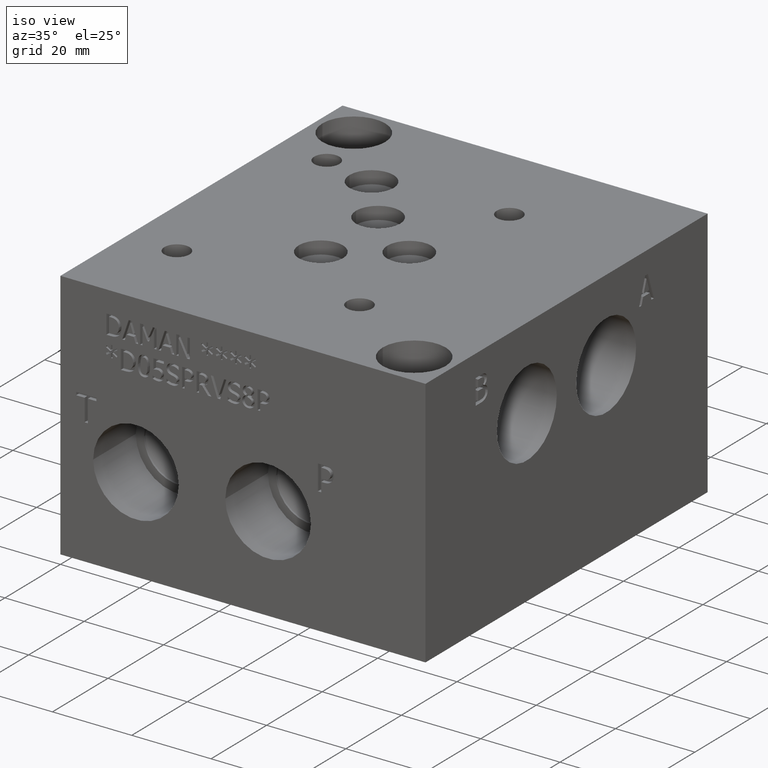
[diagram: clean part render]
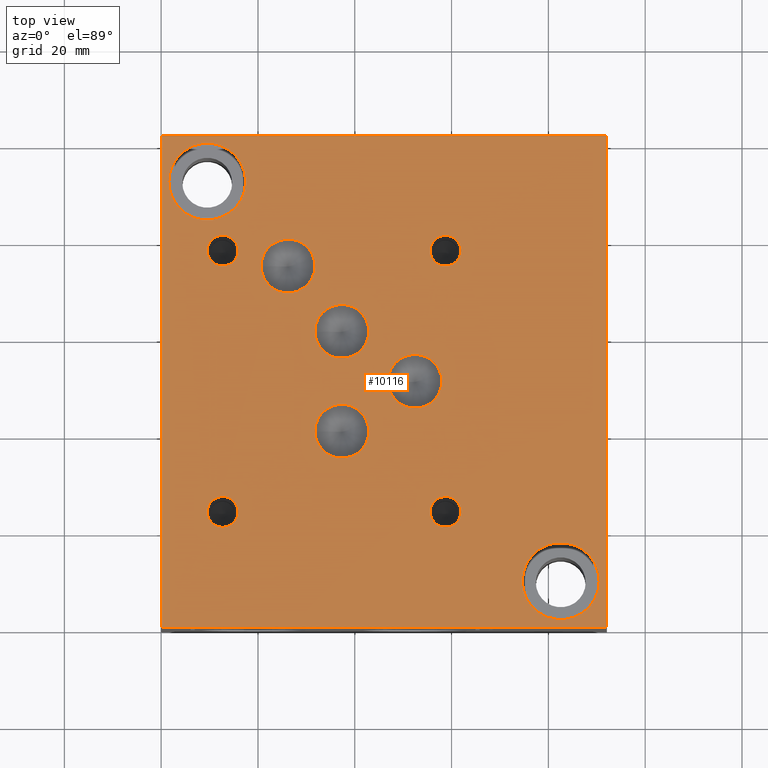
[diagram: tour spotlight — one face highlighted and labeled with its STEP entity id]
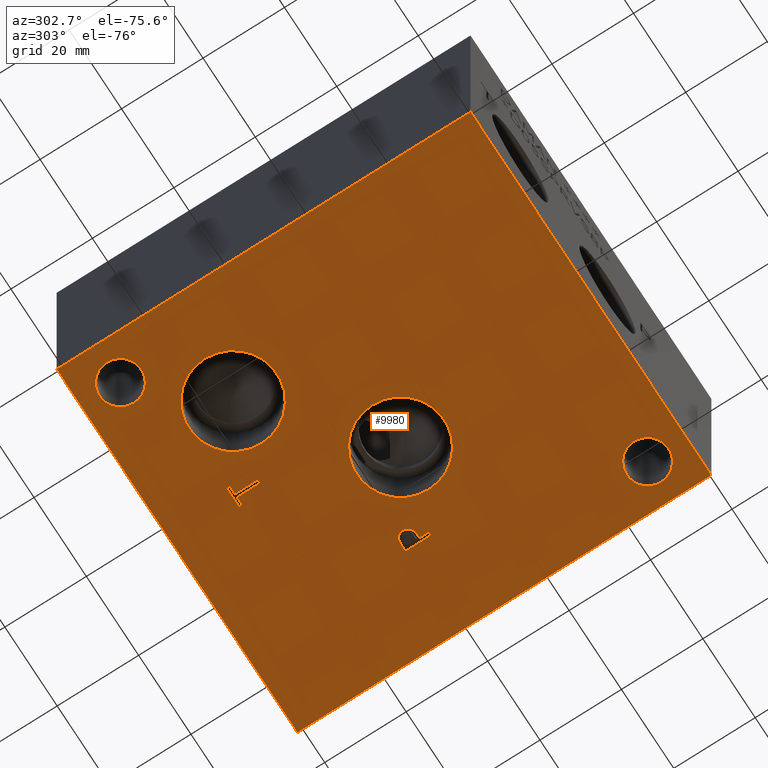
[diagram: tour spotlight — one face highlighted and labeled with its STEP entity id]
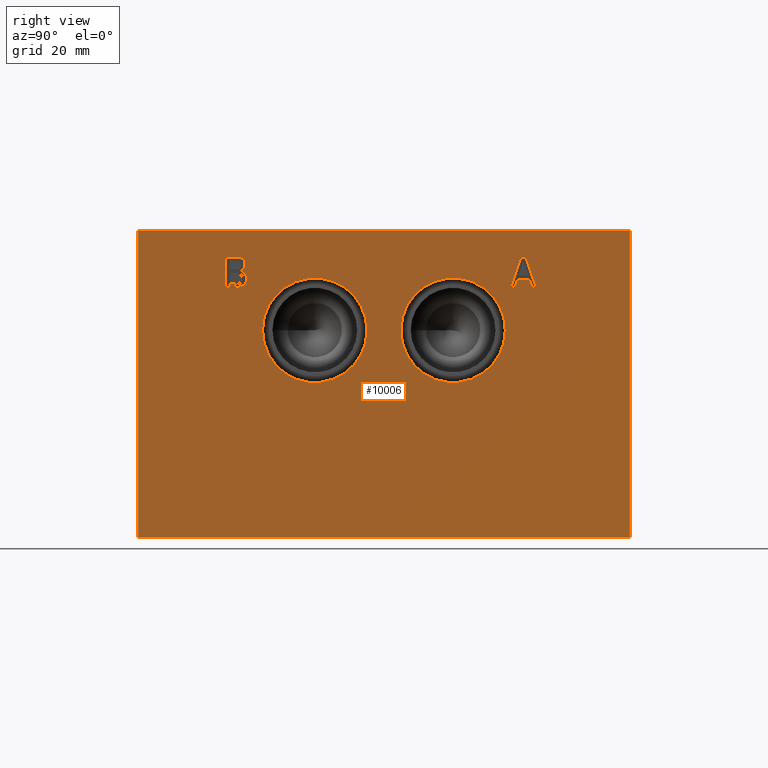
[diagram: tour spotlight — one face highlighted and labeled with its STEP entity id]
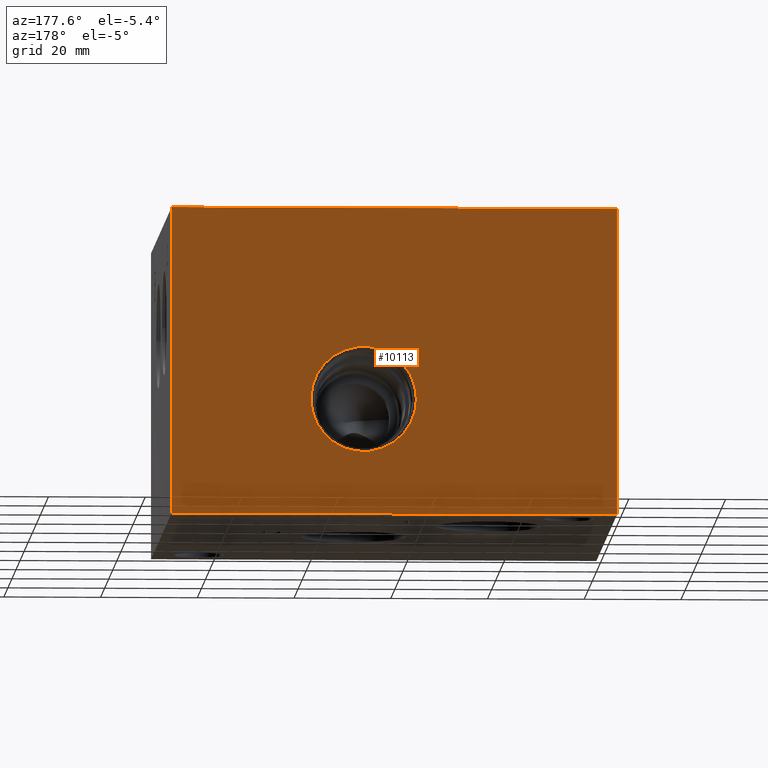
[diagram: tour spotlight — one face highlighted and labeled with its STEP entity id]
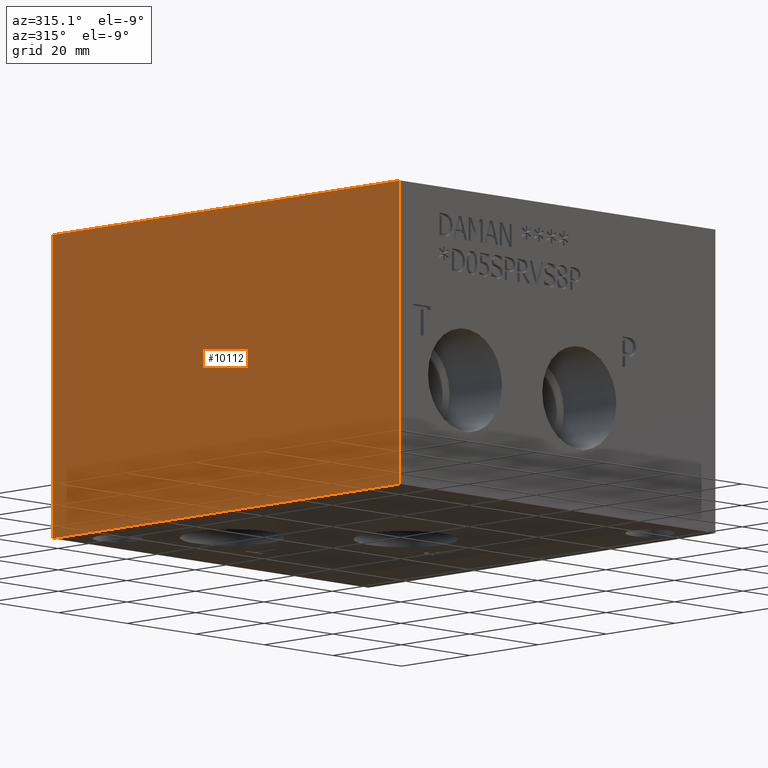
[diagram: tour spotlight — one face highlighted and labeled with its STEP entity id]
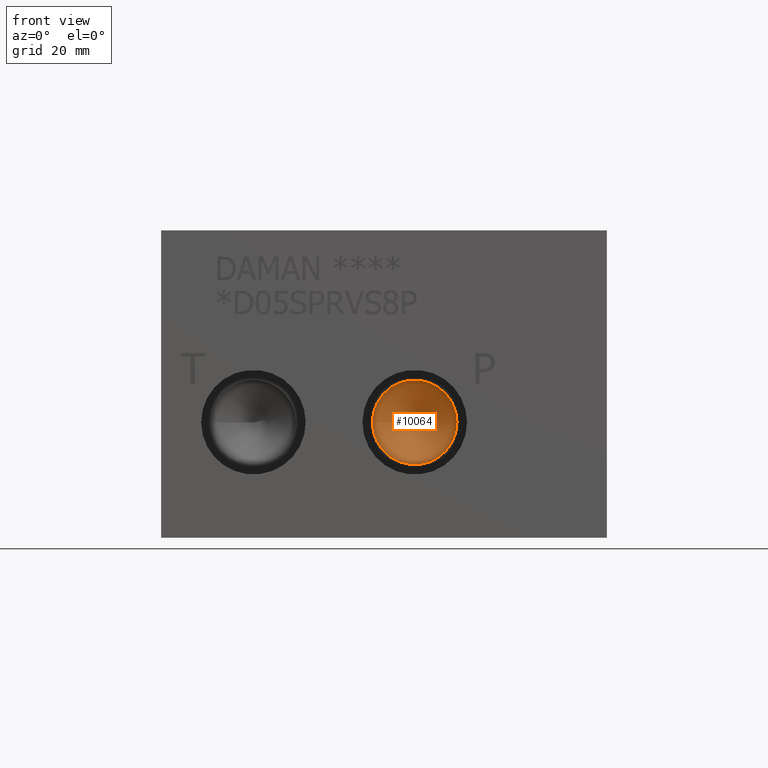
[diagram: tour spotlight — one face highlighted and labeled with its STEP entity id]
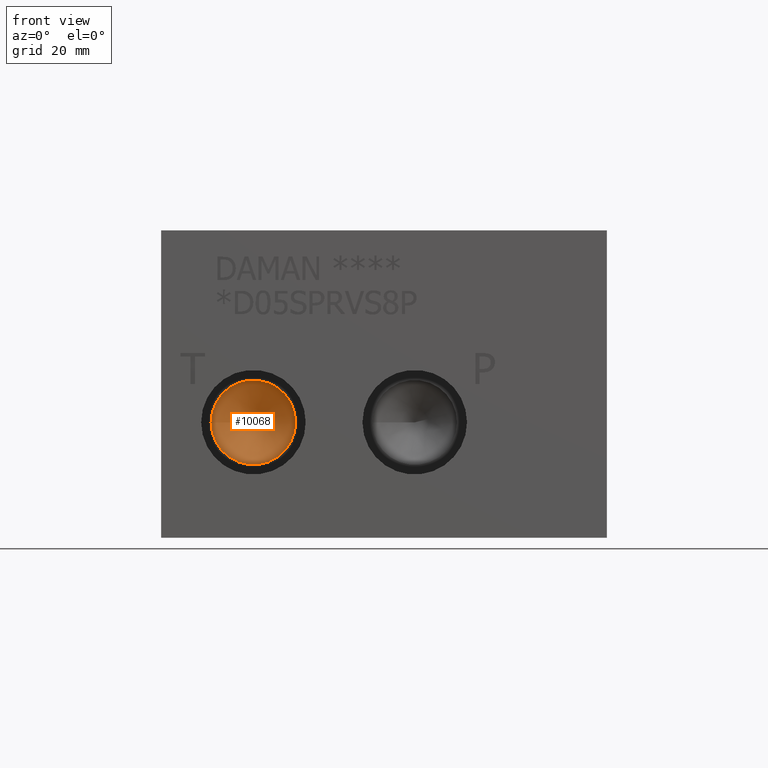
[diagram: tour spotlight — one face highlighted and labeled with its STEP entity id]
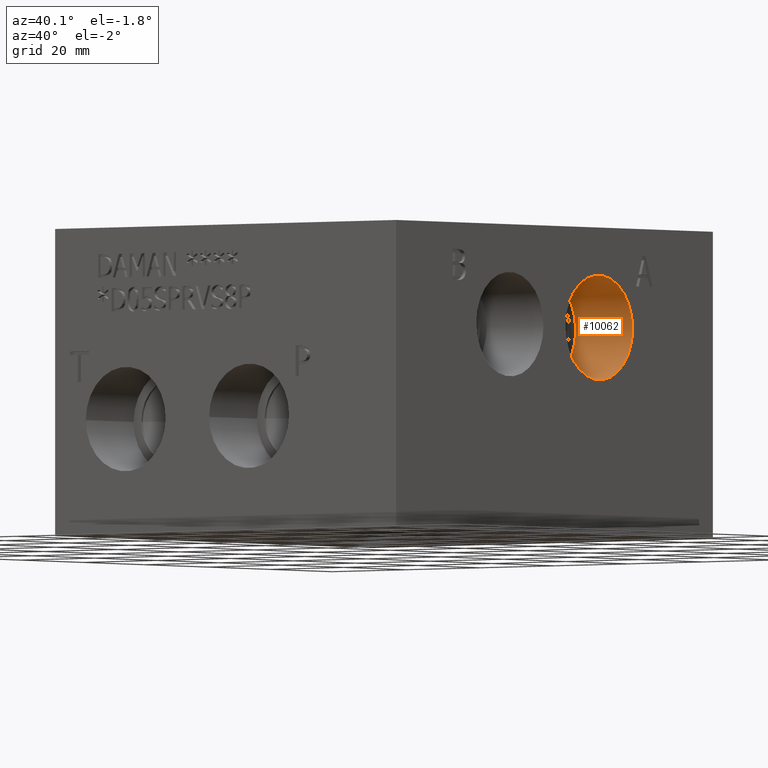
[diagram: tour spotlight — one face highlighted and labeled with its STEP entity id]
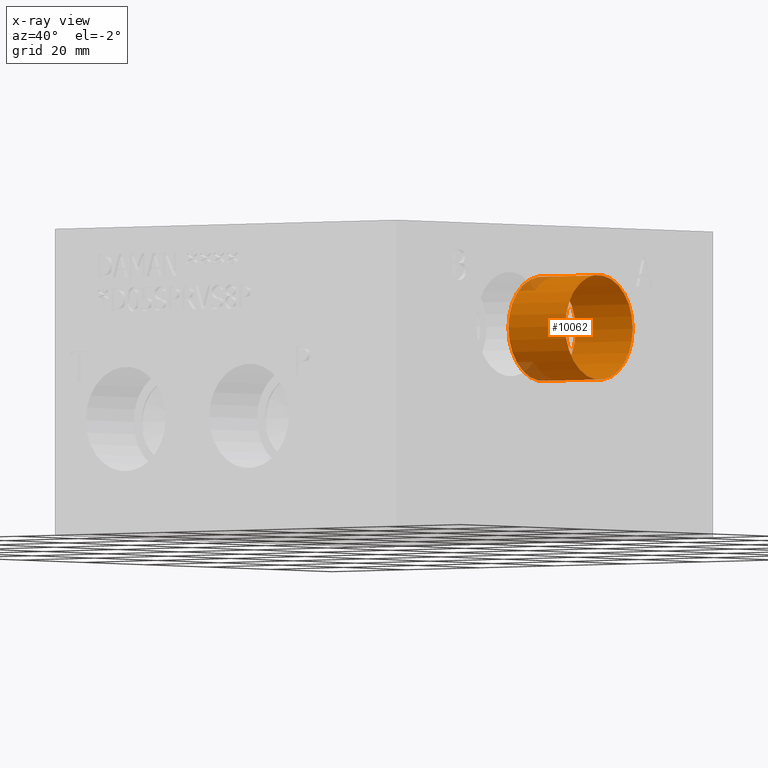
[diagram: x-ray of the same camera — body ghosted, this tour face saturated]
A machine part: a face-by-face anatomy tour. The part has 513 B-rep faces; the first image is the clean iso view, then the 8 largest visible faces are spotlighted one at a time (largest first), each with its STEP entity span.

Face 1 — top view, entity #10116. In plain terms, the highlighted planar face has unit normal (0, 0, 1).
Definition (entity closure, byte-faithful):
#683=FACE_BOUND('',#2096,.T.);
#684=FACE_BOUND('',#2097,.T.);
#685=FACE_BOUND('',#2098,.T.);
#686=FACE_BOUND('',#2099,.T.);
#687=FACE_BOUND('',#2100,.T.);
#688=FACE_BOUND('',#2101,.T.);
#689=FACE_BOUND('',#2102,.T.);
#690=FACE_BOUND('',#2103,.T.);
#691=FACE_BOUND('',#2104,.T.);
#692=FACE_BOUND('',#2105,.T.);
#1004=PLANE('',#10626);
#1517=FACE_OUTER_BOUND('',#2095,.T.);
#2095=EDGE_LOOP('',(#9555,#9556,#9557,#9558));
#2096=EDGE_LOOP('',(#9559,#9560));
#2097=EDGE_LOOP('',(#9561,#9562));
#2098=EDGE_LOOP('',(#9563,#9564));
#2099=EDGE_LOOP('',(#9565,#9566));
#2100=EDGE_LOOP('',(#9567,#9568));
#2101=EDGE_LOOP('',(#9569,#9570));
#2102=EDGE_LOOP('',(#9571,#9572));
#2103=EDGE_LOOP('',(#9573,#9574));
#2104=EDGE_LOOP('',(#9575,#9576));
#2105=EDGE_LOOP('',(#9577,#9578));
#2448=LINE('',#15187,#3416);
#2944=LINE('',#16745,#3912);
#3072=LINE('',#17364,#4040);
#3074=LINE('',#17367,#4042);
#3416=VECTOR('',#11183,10.);
#3912=VECTOR('',#12039,10.);
#4040=VECTOR('',#12577,10.);
#4042=VECTOR('',#12581,10.);
#4120=CIRCLE('',#10543,7.9375);
#4121=CIRCLE('',#10544,7.9375);
#4125=CIRCLE('',#10551,7.9375);
#4126=CIRCLE('',#10552,7.9375);
#4129=CIRCLE('',#10558,5.5626);
#4130=CIRCLE('',#10559,5.5626);
#4133=CIRCLE('',#10564,5.5626);
#4134=CIRCLE('',#10565,5.5626);
#4137=CIRCLE('',#10570,5.5626);
#4138=CIRCLE('',#10571,5.5626);
#4141=CIRCLE('',#10576,5.5626);
#4142=CIRCLE('',#10577,5.5626);
#4148=CIRCLE('',#10586,3.175);
#4149=CIRCLE('',#10587,3.175);
#4155=CIRCLE('',#10597,3.175);
#4156=CIRCLE('',#10598,3.175);
#4162=CIRCLE('',#10608,3.175);
#4163=CIRCLE('',#10609,3.175);
#4169=CIRCLE('',#10619,3.175);
#4170=CIRCLE('',#10620,3.175);
#4851=VERTEX_POINT('',#15184);
#4852=VERTEX_POINT('',#15186);
#5238=VERTEX_POINT('',#16743);
#5353=VERTEX_POINT('',#17200);
#5354=VERTEX_POINT('',#17201);
#5358=VERTEX_POINT('',#17215);
#5359=VERTEX_POINT('',#17216);
#5363=VERTEX_POINT('',#17230);
#5364=VERTEX_POINT('',#17231);
#5368=VERTEX_POINT('',#17243);
#5369=VERTEX_POINT('',#17244);
#5373=VERTEX_POINT('',#17256);
#5374=VERTEX_POINT('',#17257);
#5378=VERTEX_POINT('',#17269);
#5379=VERTEX_POINT('',#17270);
#5386=VERTEX_POINT('',#17289);
#5387=VERTEX_POINT('',#17290);
#5394=VERTEX_POINT('',#17311);
#5395=VERTEX_POINT('',#17312);
#5402=VERTEX_POINT('',#17333);
#5403=VERTEX_POINT('',#17334);
#5410=VERTEX_POINT('',#17355);
#5411=VERTEX_POINT('',#17356);
#5412=VERTEX_POINT('',#17363);
#5986=EDGE_CURVE('',#4852,#4851,#2448,.T.);
#6554=EDGE_CURVE('',#4851,#5238,#2944,.T.);
#6726=EDGE_CURVE('',#5353,#5354,#4120,.T.);
#6727=EDGE_CURVE('',#5354,#5353,#4121,.T.);
#6733=EDGE_CURVE('',#5358,#5359,#4125,.T.);
#6734=EDGE_CURVE('',#5359,#5358,#4126,.T.);
#6740=EDGE_CURVE('',#5363,#5364,#4129,.T.);
#6741=EDGE_CURVE('',#5364,#5363,#4130,.T.);
#6746=EDGE_CURVE('',#5368,#5369,#4133,.T.);
#6747=EDGE_CURVE('',#5369,#5368,#4134,.T.);
#6752=EDGE_CURVE('',#5373,#5374,#4137,.T.);
#6753=EDGE_CURVE('',#5374,#5373,#4138,.T.);
#6758=EDGE_CURVE('',#5378,#5379,#4141,.T.);
#6759=EDGE_CURVE('',#5379,#5378,#4142,.T.);
#6767=EDGE_CURVE('',#5386,#5387,#4148,.T.);
#6768=EDGE_CURVE('',#5387,#5386,#4149,.T.);
#6777=EDGE_CURVE('',#5394,#5395,#4155,.T.);
#6778=EDGE_CURVE('',#5395,#5394,#4156,.T.);
#6787=EDGE_CURVE('',#5402,#5403,#4162,.T.);
#6788=EDGE_CURVE('',#5403,#5402,#4163,.T.);
#6797=EDGE_CURVE('',#5410,#5411,#4169,.T.);
#6798=EDGE_CURVE('',#5411,#5410,#4170,.T.);
#6801=EDGE_CURVE('',#5412,#4852,#3072,.T.);
#6803=EDGE_CURVE('',#5238,#5412,#3074,.T.);
#9555=ORIENTED_EDGE('',*,*,#5986,.T.);
#9556=ORIENTED_EDGE('',*,*,#6554,.T.);
#9557=ORIENTED_EDGE('',*,*,#6803,.T.);
#9558=ORIENTED_EDGE('',*,*,#6801,.T.);
#9559=ORIENTED_EDGE('',*,*,#6726,.T.);
#9560=ORIENTED_EDGE('',*,*,#6727,.T.);
#9561=ORIENTED_EDGE('',*,*,#6733,.T.);
#9562=ORIENTED_EDGE('',*,*,#6734,.T.);
#9563=ORIENTED_EDGE('',*,*,#6740,.T.);
#9564=ORIENTED_EDGE('',*,*,#6741,.T.);
#9565=ORIENTED_EDGE('',*,*,#6746,.T.);
#9566=ORIENTED_EDGE('',*,*,#6747,.T.);
#9567=ORIENTED_EDGE('',*,*,#6752,.T.);
#9568=ORIENTED_EDGE('',*,*,#6753,.T.);
#9569=ORIENTED_EDGE('',*,*,#6758,.T.);
#9570=ORIENTED_EDGE('',*,*,#6759,.T.);
#9571=ORIENTED_EDGE('',*,*,#6767,.T.);
#9572=ORIENTED_EDGE('',*,*,#6768,.T.);
#9573=ORIENTED_EDGE('',*,*,#6777,.T.);
#9574=ORIENTED_EDGE('',*,*,#6778,.T.);
#9575=ORIENTED_EDGE('',*,*,#6787,.T.);
#9576=ORIENTED_EDGE('',*,*,#6788,.T.);
#9577=ORIENTED_EDGE('',*,*,#6797,.T.);
#9578=ORIENTED_EDGE('',*,*,#6798,.T.);
#10116=ADVANCED_FACE('',(#1517,#683,#684,#685,#686,#687,#688,#689,#690,
#691,#692),#1004,.T.);
#10543=AXIS2_PLACEMENT_3D('',#17202,#12393,#12394);
#10544=AXIS2_PLACEMENT_3D('',#17203,#12395,#12396);
#10551=AXIS2_PLACEMENT_3D('',#17217,#12411,#12412);
#10552=AXIS2_PLACEMENT_3D('',#17218,#12413,#12414);
#10558=AXIS2_PLACEMENT_3D('',#17232,#12428,#12429);
#10559=AXIS2_PLACEMENT_3D('',#17233,#12430,#12431);
#10564=AXIS2_PLACEMENT_3D('',#17245,#12442,#12443);
#10565=AXIS2_PLACEMENT_3D('',#17246,#12444,#12445);
#10570=AXIS2_PLACEMENT_3D('',#17258,#12456,#12457);
#10571=AXIS2_PLACEMENT_3D('',#17259,#12458,#12459);
#10576=AXIS2_PLACEMENT_3D('',#17271,#12470,#12471);
#10577=AXIS2_PLACEMENT_3D('',#17272,#12472,#12473);
#10586=AXIS2_PLACEMENT_3D('',#17291,#12492,#12493);
#10587=AXIS2_PLACEMENT_3D('',#17292,#12494,#12495);
#10597=AXIS2_PLACEMENT_3D('',#17313,#12517,#12518);
#10598=AXIS2_PLACEMENT_3D('',#17314,#12519,#12520);
#10608=AXIS2_PLACEMENT_3D('',#17335,#12542,#12543);
#10609=AXIS2_PLACEMENT_3D('',#17336,#12544,#12545);
#10619=AXIS2_PLACEMENT_3D('',#17357,#12567,#12568);
#10620=AXIS2_PLACEMENT_3D('',#17358,#12569,#12570);
#10626=AXIS2_PLACEMENT_3D('',#17370,#12586,#12587);
#11183=DIRECTION('',(1.,0.,0.));
#12039=DIRECTION('',(0.,1.,0.));
#12393=DIRECTION('center_axis',(0.,0.,-1.));
#12394=DIRECTION('ref_axis',(1.,0.,0.));
#12395=DIRECTION('center_axis',(0.,0.,-1.));
#12396=DIRECTION('ref_axis',(1.,0.,0.));
#12411=DIRECTION('center_axis',(0.,0.,-1.));
#12412=DIRECTION('ref_axis',(1.,0.,0.));
#12413=DIRECTION('center_axis',(0.,0.,-1.));
#12414=DIRECTION('ref_axis',(1.,0.,0.));
#12428=DIRECTION('center_axis',(0.,0.,-1.));
#12429=DIRECTION('ref_axis',(1.,0.,0.));
#12430=DIRECTION('center_axis',(0.,0.,-1.));
#12431=DIRECTION('ref_axis',(1.,0.,0.));
#12442=DIRECTION('center_axis',(0.,0.,-1.));
#12443=DIRECTION('ref_axis',(1.,0.,0.));
#12444=DIRECTION('center_axis',(0.,0.,-1.));
#12445=DIRECTION('ref_axis',(1.,0.,0.));
#12456=DIRECTION('center_axis',(0.,0.,-1.));
#12457=DIRECTION('ref_axis',(1.,0.,0.));
#12458=DIRECTION('center_axis',(0.,0.,-1.));
#12459=DIRECTION('ref_axis',(1.,0.,0.));
#12470=DIRECTION('center_axis',(0.,0.,-1.));
#12471=DIRECTION('ref_axis',(1.,0.,0.));
#12472=DIRECTION('center_axis',(0.,0.,-1.));
#12473=DIRECTION('ref_axis',(1.,0.,0.));
#12492=DIRECTION('center_axis',(0.,0.,-1.));
#12493=DIRECTION('ref_axis',(1.,0.,0.));
#12494=DIRECTION('center_axis',(0.,0.,-1.));
#12495=DIRECTION('ref_axis',(1.,0.,0.));
#12517=DIRECTION('center_axis',(0.,0.,-1.));
#12518=DIRECTION('ref_axis',(1.,0.,0.));
#12519=DIRECTION('center_axis',(0.,0.,-1.));
#12520=DIRECTION('ref_axis',(1.,0.,0.));
#12542=DIRECTION('center_axis',(0.,0.,-1.));
#12543=DIRECTION('ref_axis',(1.,0.,0.));
#12544=DIRECTION('center_axis',(0.,0.,-1.));
#12545=DIRECTION('ref_axis',(1.,0.,0.));
#12567=DIRECTION('center_axis',(0.,0.,-1.));
#12568=DIRECTION('ref_axis',(1.,0.,0.));
#12569=DIRECTION('center_axis',(0.,0.,-1.));
#12570=DIRECTION('ref_axis',(1.,0.,0.));
#12577=DIRECTION('',(0.,-1.,0.));
#12581=DIRECTION('',(-1.,0.,0.));
#12586=DIRECTION('center_axis',(0.,0.,1.));
#12587=DIRECTION('ref_axis',(1.,0.,0.));
#15184=CARTESIAN_POINT('',(92.075,0.,63.5));
#15186=CARTESIAN_POINT('',(0.,0.,63.5));
#15187=CARTESIAN_POINT('',(0.,0.,63.5));
#16743=CARTESIAN_POINT('',(92.075,101.6,63.5));
#16745=CARTESIAN_POINT('',(92.075,0.,63.5));
#17200=CARTESIAN_POINT('',(17.4625,92.075,63.5));
#17201=CARTESIAN_POINT('',(1.5875,92.075,63.5));
#17202=CARTESIAN_POINT('Origin',(9.525,92.075,63.5));
#17203=CARTESIAN_POINT('Origin',(9.525,92.075,63.5));
#17215=CARTESIAN_POINT('',(90.4875,9.525,63.5));
#17216=CARTESIAN_POINT('',(74.6125,9.525,63.5));
#17217=CARTESIAN_POINT('Origin',(82.55,9.525,63.5));
#17218=CARTESIAN_POINT('Origin',(82.55,9.525,63.5));
#17230=CARTESIAN_POINT('',(42.8879,61.11748,63.5));
#17231=CARTESIAN_POINT('',(31.7627,61.11748,63.5));
#17232=CARTESIAN_POINT('Origin',(37.3253,61.11748,63.5));
#17233=CARTESIAN_POINT('Origin',(37.3253,61.11748,63.5));
#17243=CARTESIAN_POINT('',(57.9882,50.8,63.5));
#17244=CARTESIAN_POINT('',(46.863,50.8,63.5));
#17245=CARTESIAN_POINT('Origin',(52.4256,50.8,63.5));
#17246=CARTESIAN_POINT('Origin',(52.4256,50.8,63.5));
#17256=CARTESIAN_POINT('',(31.7754,74.6252,63.5));
#17257=CARTESIAN_POINT('',(20.6502,74.6252,63.5));
#17258=CARTESIAN_POINT('Origin',(26.2128,74.6252,63.5));
#17259=CARTESIAN_POINT('Origin',(26.2128,74.6252,63.5));
#17269=CARTESIAN_POINT('',(42.89298,40.48252,63.5));
#17270=CARTESIAN_POINT('',(31.76778,40.48252,63.5));
#17271=CARTESIAN_POINT('Origin',(37.33038,40.48252,63.5));
#17272=CARTESIAN_POINT('Origin',(37.33038,40.48252,63.5));
#17289=CARTESIAN_POINT('',(61.9252,23.8379,63.5));
#17290=CARTESIAN_POINT('',(55.5752,23.8379,63.5));
#17291=CARTESIAN_POINT('Origin',(58.7502,23.8379,63.5));
#17292=CARTESIAN_POINT('Origin',(58.7502,23.8379,63.5));
#17311=CARTESIAN_POINT('',(15.875,77.8002,63.5));
#17312=CARTESIAN_POINT('',(9.525,77.8002,63.5));
#17313=CARTESIAN_POINT('Origin',(12.7,77.8002,63.5));
#17314=CARTESIAN_POINT('Origin',(12.7,77.8002,63.5));
#17333=CARTESIAN_POINT('',(61.9252,77.8002,63.5));
#17334=CARTESIAN_POINT('',(55.5752,77.8002,63.5));
#17335=CARTESIAN_POINT('Origin',(58.7502,77.8002,63.5));
#17336=CARTESIAN_POINT('Origin',(58.7502,77.8002,63.5));
#17355=CARTESIAN_POINT('',(15.875,23.8252,63.5));
#17356=CARTESIAN_POINT('',(9.525,23.8252,63.5));
#17357=CARTESIAN_POINT('Origin',(12.7,23.8252,63.5));
#17358=CARTESIAN_POINT('Origin',(12.7,23.8252,63.5));
#17363=CARTESIAN_POINT('',(0.,101.6,63.5));
#17364=CARTESIAN_POINT('',(0.,101.6,63.5));
#17367=CARTESIAN_POINT('',(92.075,101.6,63.5));
#17370=CARTESIAN_POINT('Origin',(46.0375,50.8,63.5));

Face 2 — auxiliary view, entity #9980. In plain terms, the highlighted planar face has unit normal (0, 0, 1).
Definition (entity closure, byte-faithful):
#655=FACE_BOUND('',#1932,.T.);
#656=FACE_BOUND('',#1933,.T.);
#657=FACE_BOUND('',#1934,.T.);
#658=FACE_BOUND('',#1935,.T.);
#659=FACE_BOUND('',#1936,.T.);
#660=FACE_BOUND('',#1937,.T.);
#941=PLANE('',#10401);
#1381=FACE_OUTER_BOUND('',#1931,.T.);
#1931=EDGE_LOOP('',(#8860,#8861,#8862,#8863));
#1932=EDGE_LOOP('',(#8864,#8865));
#1933=EDGE_LOOP('',(#8866,#8867,#8868,#8869,#8870,#8871,#8872,#8873));
#1934=EDGE_LOOP('',(#8874));
#1935=EDGE_LOOP('',(#8875));
#1936=EDGE_LOOP('',(#8876,#8877));
#1937=EDGE_LOOP('',(#8878,#8879,#8880,#8881,#8882,#8883,#8884,#8885,#8886));
#2446=LINE('',#15183,#3414);
#2840=LINE('',#16154,#3808);
#2844=LINE('',#16162,#3812);
#2847=LINE('',#16168,#3815);
#2850=LINE('',#16174,#3818);
#2853=LINE('',#16180,#3821);
#2856=LINE('',#16186,#3824);
#2859=LINE('',#16192,#3827);
#2862=LINE('',#16197,#3830);
#2880=LINE('',#16337,#3848);
#2883=LINE('',#16343,#3851);
#2886=LINE('',#16349,#3854);
#2889=LINE('',#16355,#3857);
#2892=LINE('',#16361,#3860);
#2896=LINE('',#16403,#3864);
#2897=LINE('',#16405,#3865);
#2898=LINE('',#16406,#3866);
#3414=VECTOR('',#11181,10.);
#3808=VECTOR('',#11867,10.);
#3812=VECTOR('',#11873,10.);
#3815=VECTOR('',#11878,10.);
#3818=VECTOR('',#11883,10.);
#3821=VECTOR('',#11888,10.);
#3824=VECTOR('',#11893,10.);
#3827=VECTOR('',#11898,10.);
#3830=VECTOR('',#11903,10.);
#3848=VECTOR('',#11931,10.);
#3851=VECTOR('',#11936,10.);
#3854=VECTOR('',#11941,10.);
#3857=VECTOR('',#11946,10.);
#3860=VECTOR('',#11951,10.);
#3864=VECTOR('',#11959,10.);
#3865=VECTOR('',#11960,10.);
#3866=VECTOR('',#11961,10.);
#4048=CIRCLE('',#10140,10.7569);
#4049=CIRCLE('',#10141,10.7569);
#4060=CIRCLE('',#10402,5.1562);
#4061=CIRCLE('',#10403,5.1562);
#4062=CIRCLE('',#10404,10.795);
#4063=CIRCLE('',#10405,10.795);
#4418=B_SPLINE_CURVE_WITH_KNOTS('',2,(#16304,#16305,#16306,#16307),
 .UNSPECIFIED.,.F.,.F.,(3,1,3),(0.,1.,2.),.UNSPECIFIED.);
#4420=B_SPLINE_CURVE_WITH_KNOTS('',2,(#16325,#16326,#16327,#16328),
 .UNSPECIFIED.,.F.,.F.,(3,1,3),(0.,1.,2.),.UNSPECIFIED.);
#4422=B_SPLINE_CURVE_WITH_KNOTS('',2,(#16374,#16375,#16376,#16377),
 .UNSPECIFIED.,.F.,.F.,(3,1,3),(0.,1.,2.),.UNSPECIFIED.);
#4424=B_SPLINE_CURVE_WITH_KNOTS('',2,(#16392,#16393,#16394,#16395),
 .UNSPECIFIED.,.F.,.F.,(3,1,3),(0.,1.,2.),.UNSPECIFIED.);
#4478=VERTEX_POINT('',#12649);
#4479=VERTEX_POINT('',#12650);
#4849=VERTEX_POINT('',#15181);
#4850=VERTEX_POINT('',#15182);
#5136=VERTEX_POINT('',#16152);
#5137=VERTEX_POINT('',#16153);
#5140=VERTEX_POINT('',#16161);
#5142=VERTEX_POINT('',#16167);
#5144=VERTEX_POINT('',#16173);
#5146=VERTEX_POINT('',#16179);
#5148=VERTEX_POINT('',#16185);
#5150=VERTEX_POINT('',#16191);
#5166=VERTEX_POINT('',#16302);
#5167=VERTEX_POINT('',#16303);
#5170=VERTEX_POINT('',#16324);
#5172=VERTEX_POINT('',#16336);
#5174=VERTEX_POINT('',#16342);
#5176=VERTEX_POINT('',#16348);
#5178=VERTEX_POINT('',#16354);
#5180=VERTEX_POINT('',#16360);
#5182=VERTEX_POINT('',#16373);
#5184=VERTEX_POINT('',#16402);
#5185=VERTEX_POINT('',#16404);
#5186=VERTEX_POINT('',#16407);
#5187=VERTEX_POINT('',#16409);
#5188=VERTEX_POINT('',#16411);
#5189=VERTEX_POINT('',#16412);
#5425=EDGE_CURVE('',#4478,#4479,#4048,.T.);
#5426=EDGE_CURVE('',#4479,#4478,#4049,.T.);
#5984=EDGE_CURVE('',#4849,#4850,#2446,.T.);
#6402=EDGE_CURVE('',#5136,#5137,#2840,.T.);
#6406=EDGE_CURVE('',#5140,#5136,#2844,.T.);
#6409=EDGE_CURVE('',#5142,#5140,#2847,.T.);
#6412=EDGE_CURVE('',#5144,#5142,#2850,.T.);
#6415=EDGE_CURVE('',#5146,#5144,#2853,.T.);
#6418=EDGE_CURVE('',#5148,#5146,#2856,.T.);
#6421=EDGE_CURVE('',#5150,#5148,#2859,.T.);
#6424=EDGE_CURVE('',#5137,#5150,#2862,.T.);
#6447=EDGE_CURVE('',#5166,#5167,#4418,.T.);
#6451=EDGE_CURVE('',#5170,#5166,#4420,.T.);
#6454=EDGE_CURVE('',#5172,#5170,#2880,.T.);
#6457=EDGE_CURVE('',#5174,#5172,#2883,.T.);
#6460=EDGE_CURVE('',#5176,#5174,#2886,.T.);
#6463=EDGE_CURVE('',#5178,#5176,#2889,.T.);
#6466=EDGE_CURVE('',#5180,#5178,#2892,.T.);
#6469=EDGE_CURVE('',#5182,#5180,#4422,.T.);
#6472=EDGE_CURVE('',#5167,#5182,#4424,.T.);
#6474=EDGE_CURVE('',#5184,#4849,#2896,.T.);
#6475=EDGE_CURVE('',#5185,#5184,#2897,.T.);
#6476=EDGE_CURVE('',#4850,#5185,#2898,.T.);
#6477=EDGE_CURVE('',#5186,#5186,#4060,.T.);
#6478=EDGE_CURVE('',#5187,#5187,#4061,.T.);
#6479=EDGE_CURVE('',#5188,#5189,#4062,.T.);
#6480=EDGE_CURVE('',#5189,#5188,#4063,.T.);
#8860=ORIENTED_EDGE('',*,*,#5984,.F.);
#8861=ORIENTED_EDGE('',*,*,#6474,.F.);
#8862=ORIENTED_EDGE('',*,*,#6475,.F.);
#8863=ORIENTED_EDGE('',*,*,#6476,.F.);
#8864=ORIENTED_EDGE('',*,*,#5425,.T.);
#8865=ORIENTED_EDGE('',*,*,#5426,.T.);
#8866=ORIENTED_EDGE('',*,*,#6402,.T.);
#8867=ORIENTED_EDGE('',*,*,#6424,.T.);
#8868=ORIENTED_EDGE('',*,*,#6421,.T.);
#8869=ORIENTED_EDGE('',*,*,#6418,.T.);
#8870=ORIENTED_EDGE('',*,*,#6415,.T.);
#8871=ORIENTED_EDGE('',*,*,#6412,.T.);
#8872=ORIENTED_EDGE('',*,*,#6409,.T.);
#8873=ORIENTED_EDGE('',*,*,#6406,.T.);
#8874=ORIENTED_EDGE('',*,*,#6477,.T.);
#8875=ORIENTED_EDGE('',*,*,#6478,.T.);
#8876=ORIENTED_EDGE('',*,*,#6479,.T.);
#8877=ORIENTED_EDGE('',*,*,#6480,.T.);
#8878=ORIENTED_EDGE('',*,*,#6447,.T.);
#8879=ORIENTED_EDGE('',*,*,#6472,.T.);
#8880=ORIENTED_EDGE('',*,*,#6469,.T.);
#8881=ORIENTED_EDGE('',*,*,#6466,.T.);
#8882=ORIENTED_EDGE('',*,*,#6463,.T.);
#8883=ORIENTED_EDGE('',*,*,#6460,.T.);
#8884=ORIENTED_EDGE('',*,*,#6457,.T.);
#8885=ORIENTED_EDGE('',*,*,#6454,.T.);
#8886=ORIENTED_EDGE('',*,*,#6451,.T.);
#9980=ADVANCED_FACE('',(#1381,#655,#656,#657,#658,#659,#660),#941,.F.);
#10140=AXIS2_PLACEMENT_3D('',#12651,#10650,#10651);
#10141=AXIS2_PLACEMENT_3D('',#12652,#10652,#10653);
#10401=AXIS2_PLACEMENT_3D('',#16401,#11957,#11958);
#10402=AXIS2_PLACEMENT_3D('',#16408,#11962,#11963);
#10403=AXIS2_PLACEMENT_3D('',#16410,#11964,#11965);
#10404=AXIS2_PLACEMENT_3D('',#16413,#11966,#11967);
#10405=AXIS2_PLACEMENT_3D('',#16414,#11968,#11969);
#10650=DIRECTION('center_axis',(0.,0.,1.));
#10651=DIRECTION('ref_axis',(1.,0.,0.));
#10652=DIRECTION('center_axis',(0.,0.,1.));
#10653=DIRECTION('ref_axis',(1.,0.,0.));
#11181=DIRECTION('',(1.,0.,0.));
#11867=DIRECTION('',(1.,0.,0.));
#11873=DIRECTION('',(3.17280044688052E-15,-1.,0.));
#11878=DIRECTION('',(1.,0.,0.));
#11883=DIRECTION('',(0.,-1.,0.));
#11888=DIRECTION('',(-1.,-6.9596913028347E-15,0.));
#11893=DIRECTION('',(0.,1.,0.));
#11898=DIRECTION('',(1.,0.,0.));
#11903=DIRECTION('',(-3.17280044688051E-15,1.,0.));
#11931=DIRECTION('',(-1.,0.,0.));
#11936=DIRECTION('',(-2.79741238752512E-15,1.,0.));
#11941=DIRECTION('',(1.,0.,0.));
#11946=DIRECTION('',(3.75218139805001E-15,-1.,0.));
#11951=DIRECTION('',(1.,0.,0.));
#11957=DIRECTION('center_axis',(0.,0.,1.));
#11958=DIRECTION('ref_axis',(1.,0.,0.));
#11959=DIRECTION('',(0.,-1.,0.));
#11960=DIRECTION('',(-1.,0.,0.));
#11961=DIRECTION('',(0.,1.,0.));
#11962=DIRECTION('center_axis',(0.,0.,1.));
#11963=DIRECTION('ref_axis',(1.,0.,0.));
#11964=DIRECTION('center_axis',(0.,0.,1.));
#11965=DIRECTION('ref_axis',(1.,0.,0.));
#11966=DIRECTION('center_axis',(0.,0.,1.));
#11967=DIRECTION('ref_axis',(1.,0.,0.));
#11968=DIRECTION('center_axis',(0.,0.,1.));
#11969=DIRECTION('ref_axis',(1.,0.,0.));
#12649=CARTESIAN_POINT('',(63.1317,50.8,0.));
#12650=CARTESIAN_POINT('',(41.6179,50.8,0.));
#12651=CARTESIAN_POINT('Origin',(52.3748,50.8,0.));
#12652=CARTESIAN_POINT('Origin',(52.3748,50.8,0.));
#15181=CARTESIAN_POINT('',(0.,0.,0.));
#15182=CARTESIAN_POINT('',(92.075,0.,0.));
#15183=CARTESIAN_POINT('',(0.,0.,0.));
#16152=CARTESIAN_POINT('',(42.274584728547,79.375,0.));
#16153=CARTESIAN_POINT('',(43.1185069200865,79.375,0.));
#16154=CARTESIAN_POINT('',(44.1560423642735,79.375,0.));
#16161=CARTESIAN_POINT('',(42.274584728547,84.9737033194815,0.));
#16162=CARTESIAN_POINT('',(42.274584728547,67.8868516597408,0.));
#16167=CARTESIAN_POINT('',(40.1441957816119,84.9737033194815,0.));
#16168=CARTESIAN_POINT('',(43.0908478908059,84.9737033194815,0.));
#16173=CARTESIAN_POINT('',(40.1441957816119,85.7249999046325,0.));
#16174=CARTESIAN_POINT('',(40.1441957816119,68.2624999523163,0.));
#16179=CARTESIAN_POINT('',(45.2488958670215,85.7249999046326,0.));
#16180=CARTESIAN_POINT('',(45.6431979335106,85.7249999046326,0.));
#16185=CARTESIAN_POINT('',(45.2488958670215,84.9737033194815,0.));
#16186=CARTESIAN_POINT('',(45.2488958670215,67.8868516597408,0.));
#16191=CARTESIAN_POINT('',(43.1185069200865,84.9737033194815,0.));
#16192=CARTESIAN_POINT('',(44.5780034600432,84.9737033194815,0.));
#16197=CARTESIAN_POINT('',(43.1185069200865,65.0875,0.));
#16302=CARTESIAN_POINT('',(68.3179827976406,61.5289681439707,0.));
#16303=CARTESIAN_POINT('',(67.561540345468,60.0109373726039,0.));
#16304=CARTESIAN_POINT('Ctrl Pts',(68.3179827976406,61.5289681439707,0.));
#16305=CARTESIAN_POINT('Ctrl Pts',(67.9629179731514,61.2871123939564,0.));
#16306=CARTESIAN_POINT('Ctrl Pts',(67.561540345468,60.5409616758269,0.));
#16307=CARTESIAN_POINT('Ctrl Pts',(67.561540345468,60.0109373726039,0.));
#16324=CARTESIAN_POINT('',(69.9800978456117,61.9251999046326,0.));
#16325=CARTESIAN_POINT('Ctrl Pts',(69.9800978456117,61.9251999046326,0.));
#16326=CARTESIAN_POINT('Ctrl Pts',(69.4140524732376,61.9251999046326,0.));
#16327=CARTESIAN_POINT('Ctrl Pts',(68.6215889519139,61.7399486918556,0.));
#16328=CARTESIAN_POINT('Ctrl Pts',(68.3179827976406,61.5289681439707,0.));
#16336=CARTESIAN_POINT('',(71.5753166223022,61.9251999046326,0.));
#16337=CARTESIAN_POINT('',(58.8064083111511,61.9251999046326,0.));
#16342=CARTESIAN_POINT('',(71.5753166223022,55.5752,0.));
#16343=CARTESIAN_POINT('',(71.5753166223022,53.1876,0.));
#16348=CARTESIAN_POINT('',(70.7313944307627,55.5752,0.));
#16349=CARTESIAN_POINT('',(58.3844472153813,55.5752,0.));
#16354=CARTESIAN_POINT('',(70.7313944307627,57.9422988299279,0.));
#16355=CARTESIAN_POINT('',(70.7313944307627,54.371149414964,0.));
#16360=CARTESIAN_POINT('',(70.0161189147628,57.9422988299279,0.));
#16361=CARTESIAN_POINT('',(58.0268094573814,57.9422988299279,0.));
#16373=CARTESIAN_POINT('',(68.1172939837989,58.6009698086904,0.));
#16374=CARTESIAN_POINT('Ctrl Pts',(68.1172939837989,58.6009698086904,0.));
#16375=CARTESIAN_POINT('Ctrl Pts',(68.4466294731802,58.2767801863307,0.));
#16376=CARTESIAN_POINT('Ctrl Pts',(69.3368644679139,57.9422988299279,0.));
#16377=CARTESIAN_POINT('Ctrl Pts',(70.0161189147628,57.9422988299279,0.));
#16392=CARTESIAN_POINT('Ctrl Pts',(67.561540345468,60.0109373726039,0.));
#16393=CARTESIAN_POINT('Ctrl Pts',(67.561540345468,59.5992680108774,0.));
#16394=CARTESIAN_POINT('Ctrl Pts',(67.8548547656982,58.8582631597695,0.));
#16395=CARTESIAN_POINT('Ctrl Pts',(68.1172939837989,58.6009698086904,0.));
#16401=CARTESIAN_POINT('Origin',(46.0375,50.8,0.));
#16402=CARTESIAN_POINT('',(0.,101.6,0.));
#16403=CARTESIAN_POINT('',(0.,101.6,0.));
#16404=CARTESIAN_POINT('',(92.075,101.6,0.));
#16405=CARTESIAN_POINT('',(92.075,101.6,0.));
#16406=CARTESIAN_POINT('',(92.075,0.,0.));
#16407=CARTESIAN_POINT('',(77.3938,9.525,0.));
#16408=CARTESIAN_POINT('Origin',(82.55,9.525,0.));
#16409=CARTESIAN_POINT('',(4.3688,92.075,0.));
#16410=CARTESIAN_POINT('Origin',(9.525,92.075,0.));
#16411=CARTESIAN_POINT('',(36.195,74.5998,0.));
#16412=CARTESIAN_POINT('',(14.605,74.5998,0.));
#16413=CARTESIAN_POINT('Origin',(25.4,74.5998,0.));
#16414=CARTESIAN_POINT('Origin',(25.4,74.5998,0.));

Face 3 — right view, entity #10006. In plain terms, the highlighted planar face has unit normal (1, 0, 0).
Definition (entity closure, byte-faithful):
#663=FACE_BOUND('',#1966,.T.);
#664=FACE_BOUND('',#1967,.T.);
#665=FACE_BOUND('',#1968,.T.);
#666=FACE_BOUND('',#1969,.T.);
#953=PLANE('',#10417);
#1407=FACE_OUTER_BOUND('',#1965,.T.);
#1965=EDGE_LOOP('',(#9007,#9008,#9009,#9010));
#1966=EDGE_LOOP('',(#9011,#9012,#9013,#9014,#9015,#9016,#9017,#9018,#9019,
#9020));
#1967=EDGE_LOOP('',(#9021,#9022));
#1968=EDGE_LOOP('',(#9023,#9024));
#1969=EDGE_LOOP('',(#9025,#9026,#9027,#9028,#9029,#9030,#9031,#9032));
#2447=LINE('',#15185,#3415);
#2898=LINE('',#16406,#3866);
#2927=LINE('',#16627,#3895);
#2933=LINE('',#16690,#3901);
#2936=LINE('',#16696,#3904);
#2939=LINE('',#16702,#3907);
#2943=LINE('',#16744,#3911);
#2944=LINE('',#16745,#3912);
#2945=LINE('',#16756,#3913);
#2946=LINE('',#16758,#3914);
#2947=LINE('',#16760,#3915);
#2948=LINE('',#16762,#3916);
#2949=LINE('',#16764,#3917);
#2950=LINE('',#16766,#3918);
#2951=LINE('',#16768,#3919);
#2952=LINE('',#16769,#3920);
#3415=VECTOR('',#11182,10.);
#3866=VECTOR('',#11961,10.);
#3895=VECTOR('',#12012,10.);
#3901=VECTOR('',#12020,10.);
#3904=VECTOR('',#12025,10.);
#3907=VECTOR('',#12030,10.);
#3911=VECTOR('',#12038,10.);
#3912=VECTOR('',#12039,10.);
#3913=VECTOR('',#12048,10.);
#3914=VECTOR('',#12049,10.);
#3915=VECTOR('',#12050,10.);
#3916=VECTOR('',#12051,10.);
#3917=VECTOR('',#12052,10.);
#3918=VECTOR('',#12053,10.);
#3919=VECTOR('',#12054,10.);
#3920=VECTOR('',#12055,10.);
#4064=CIRCLE('',#10418,10.795);
#4065=CIRCLE('',#10419,10.795);
#4066=CIRCLE('',#10420,10.795);
#4067=CIRCLE('',#10421,10.795);
#4442=B_SPLINE_CURVE_WITH_KNOTS('',2,(#16613,#16614,#16615,#16616),
 .UNSPECIFIED.,.F.,.F.,(3,1,3),(0.,1.,2.),.UNSPECIFIED.);
#4444=B_SPLINE_CURVE_WITH_KNOTS('',2,(#16640,#16641,#16642,#16643),
 .UNSPECIFIED.,.F.,.F.,(3,1,3),(0.,1.,2.),.UNSPECIFIED.);
#4446=B_SPLINE_CURVE_WITH_KNOTS('',2,(#16659,#16660,#16661,#16662),
 .UNSPECIFIED.,.F.,.F.,(3,1,3),(0.,1.,2.),.UNSPECIFIED.);
#4448=B_SPLINE_CURVE_WITH_KNOTS('',2,(#16678,#16679,#16680,#16681),
 .UNSPECIFIED.,.F.,.F.,(3,1,3),(0.,1.,2.),.UNSPECIFIED.);
#4450=B_SPLINE_CURVE_WITH_KNOTS('',2,(#16715,#16716,#16717,#16718),
 .UNSPECIFIED.,.F.,.F.,(3,1,3),(0.,1.,2.),.UNSPECIFIED.);
#4452=B_SPLINE_CURVE_WITH_KNOTS('',2,(#16733,#16734,#16735,#16736),
 .UNSPECIFIED.,.F.,.F.,(3,1,3),(0.,1.,2.),.UNSPECIFIED.);
#4850=VERTEX_POINT('',#15182);
#4851=VERTEX_POINT('',#15184);
#5185=VERTEX_POINT('',#16404);
#5218=VERTEX_POINT('',#16611);
#5219=VERTEX_POINT('',#16612);
#5222=VERTEX_POINT('',#16626);
#5224=VERTEX_POINT('',#16639);
#5226=VERTEX_POINT('',#16658);
#5228=VERTEX_POINT('',#16677);
#5230=VERTEX_POINT('',#16689);
#5232=VERTEX_POINT('',#16695);
#5234=VERTEX_POINT('',#16701);
#5236=VERTEX_POINT('',#16714);
#5238=VERTEX_POINT('',#16743);
#5239=VERTEX_POINT('',#16746);
#5240=VERTEX_POINT('',#16747);
#5241=VERTEX_POINT('',#16750);
#5242=VERTEX_POINT('',#16751);
#5243=VERTEX_POINT('',#16754);
#5244=VERTEX_POINT('',#16755);
#5245=VERTEX_POINT('',#16757);
#5246=VERTEX_POINT('',#16759);
#5247=VERTEX_POINT('',#16761);
#5248=VERTEX_POINT('',#16763);
#5249=VERTEX_POINT('',#16765);
#5250=VERTEX_POINT('',#16767);
#5985=EDGE_CURVE('',#4850,#4851,#2447,.T.);
#6476=EDGE_CURVE('',#4850,#5185,#2898,.T.);
#6523=EDGE_CURVE('',#5218,#5219,#4442,.T.);
#6527=EDGE_CURVE('',#5222,#5218,#2927,.T.);
#6530=EDGE_CURVE('',#5224,#5222,#4444,.T.);
#6533=EDGE_CURVE('',#5226,#5224,#4446,.T.);
#6536=EDGE_CURVE('',#5228,#5226,#4448,.T.);
#6539=EDGE_CURVE('',#5230,#5228,#2933,.T.);
#6542=EDGE_CURVE('',#5232,#5230,#2936,.T.);
#6545=EDGE_CURVE('',#5234,#5232,#2939,.T.);
#6548=EDGE_CURVE('',#5236,#5234,#4450,.T.);
#6551=EDGE_CURVE('',#5219,#5236,#4452,.T.);
#6553=EDGE_CURVE('',#5185,#5238,#2943,.T.);
#6554=EDGE_CURVE('',#4851,#5238,#2944,.T.);
#6555=EDGE_CURVE('',#5239,#5240,#4064,.T.);
#6556=EDGE_CURVE('',#5240,#5239,#4065,.T.);
#6557=EDGE_CURVE('',#5241,#5242,#4066,.T.);
#6558=EDGE_CURVE('',#5242,#5241,#4067,.T.);
#6559=EDGE_CURVE('',#5243,#5244,#2945,.T.);
#6560=EDGE_CURVE('',#5244,#5245,#2946,.T.);
#6561=EDGE_CURVE('',#5245,#5246,#2947,.T.);
#6562=EDGE_CURVE('',#5246,#5247,#2948,.T.);
#6563=EDGE_CURVE('',#5247,#5248,#2949,.T.);
#6564=EDGE_CURVE('',#5248,#5249,#2950,.T.);
#6565=EDGE_CURVE('',#5249,#5250,#2951,.T.);
#6566=EDGE_CURVE('',#5250,#5243,#2952,.T.);
#9007=ORIENTED_EDGE('',*,*,#6476,.T.);
#9008=ORIENTED_EDGE('',*,*,#6553,.T.);
#9009=ORIENTED_EDGE('',*,*,#6554,.F.);
#9010=ORIENTED_EDGE('',*,*,#5985,.F.);
#9011=ORIENTED_EDGE('',*,*,#6523,.T.);
#9012=ORIENTED_EDGE('',*,*,#6551,.T.);
#9013=ORIENTED_EDGE('',*,*,#6548,.T.);
#9014=ORIENTED_EDGE('',*,*,#6545,.T.);
#9015=ORIENTED_EDGE('',*,*,#6542,.T.);
#9016=ORIENTED_EDGE('',*,*,#6539,.T.);
#9017=ORIENTED_EDGE('',*,*,#6536,.T.);
#9018=ORIENTED_EDGE('',*,*,#6533,.T.);
#9019=ORIENTED_EDGE('',*,*,#6530,.T.);
#9020=ORIENTED_EDGE('',*,*,#6527,.T.);
#9021=ORIENTED_EDGE('',*,*,#6555,.T.);
#9022=ORIENTED_EDGE('',*,*,#6556,.T.);
#9023=ORIENTED_EDGE('',*,*,#6557,.T.);
#9024=ORIENTED_EDGE('',*,*,#6558,.T.);
#9025=ORIENTED_EDGE('',*,*,#6559,.T.);
#9026=ORIENTED_EDGE('',*,*,#6560,.T.);
#9027=ORIENTED_EDGE('',*,*,#6561,.T.);
#9028=ORIENTED_EDGE('',*,*,#6562,.T.);
#9029=ORIENTED_EDGE('',*,*,#6563,.T.);
#9030=ORIENTED_EDGE('',*,*,#6564,.T.);
#9031=ORIENTED_EDGE('',*,*,#6565,.T.);
#9032=ORIENTED_EDGE('',*,*,#6566,.T.);
#10006=ADVANCED_FACE('',(#1407,#663,#664,#665,#666),#953,.T.);
#10417=AXIS2_PLACEMENT_3D('',#16742,#12036,#12037);
#10418=AXIS2_PLACEMENT_3D('',#16748,#12040,#12041);
#10419=AXIS2_PLACEMENT_3D('',#16749,#12042,#12043);
#10420=AXIS2_PLACEMENT_3D('',#16752,#12044,#12045);
#10421=AXIS2_PLACEMENT_3D('',#16753,#12046,#12047);
#11182=DIRECTION('',(0.,0.,1.));
#11961=DIRECTION('',(0.,1.,0.));
#12012=DIRECTION('',(0.,0.,-1.));
#12020=DIRECTION('',(0.,1.,0.));
#12025=DIRECTION('',(0.,0.,1.));
#12030=DIRECTION('',(0.,-1.,0.));
#12036=DIRECTION('center_axis',(1.,0.,0.));
#12037=DIRECTION('ref_axis',(0.,1.,0.));
#12038=DIRECTION('',(0.,0.,1.));
#12039=DIRECTION('',(0.,1.,0.));
#12040=DIRECTION('center_axis',(-1.,0.,0.));
#12041=DIRECTION('ref_axis',(0.,1.,0.));
#12042=DIRECTION('center_axis',(-1.,0.,0.));
#12043=DIRECTION('ref_axis',(0.,1.,0.));
#12044=DIRECTION('center_axis',(-1.,0.,0.));
#12045=DIRECTION('ref_axis',(0.,1.,0.));
#12046=DIRECTION('center_axis',(-1.,0.,0.));
#12047=DIRECTION('ref_axis',(0.,1.,0.));
#12048=DIRECTION('',(0.,-1.,0.));
#12049=DIRECTION('',(0.,0.319451166674567,0.947602739606771));
#12050=DIRECTION('',(0.,1.,0.));
#12051=DIRECTION('',(0.,0.319451166674567,-0.947602739606771));
#12052=DIRECTION('',(0.,-1.,0.));
#12053=DIRECTION('',(0.,-0.308774363938375,0.951135317488764));
#12054=DIRECTION('',(0.,-1.,0.));
#12055=DIRECTION('',(0.,-0.308774363938379,-0.951135317488763));
#15182=CARTESIAN_POINT('',(92.075,0.,0.));
#15184=CARTESIAN_POINT('',(92.075,0.,63.5));
#15185=CARTESIAN_POINT('',(92.075,0.,0.));
#16404=CARTESIAN_POINT('',(92.075,101.6,0.));
#16406=CARTESIAN_POINT('',(92.075,0.,0.));
#16611=CARTESIAN_POINT('',(92.075,21.2241287927767,55.1238147768055));
#16612=CARTESIAN_POINT('',(92.075,22.4128240747622,53.5440336011797));
#16613=CARTESIAN_POINT('Ctrl Pts',(92.075,21.2241287927767,55.1238147768055));
#16614=CARTESIAN_POINT('Ctrl Pts',(92.075,21.7901741651507,54.969438766158));
#16615=CARTESIAN_POINT('Ctrl Pts',(92.075,22.4128240747622,54.1512459097264));
#16616=CARTESIAN_POINT('Ctrl Pts',(92.075,22.4128240747622,53.5440336011797));
#16626=CARTESIAN_POINT('',(92.075,21.2241287927767,55.154689978935));
#16627=CARTESIAN_POINT('',(92.075,21.2241287927767,27.5773449894675));
#16639=CARTESIAN_POINT('',(92.075,22.1143637875104,56.5131988726327));
#16640=CARTESIAN_POINT('Ctrl Pts',(92.075,22.1143637875104,56.5131988726327));
#16641=CARTESIAN_POINT('Ctrl Pts',(92.075,22.1143637875104,56.065508441755));
#16642=CARTESIAN_POINT('Ctrl Pts',(92.075,21.6409440215248,55.3553787927767));
#16643=CARTESIAN_POINT('Ctrl Pts',(92.075,21.2241287927767,55.154689978935));
#16658=CARTESIAN_POINT('',(92.075,21.4556928087479,57.6864565535535));
#16659=CARTESIAN_POINT('Ctrl Pts',(92.075,21.4556928087479,57.6864565535535));
#16660=CARTESIAN_POINT('Ctrl Pts',(92.075,21.8004658991939,57.5063512077981));
#16661=CARTESIAN_POINT('Ctrl Pts',(92.075,22.1143637875104,56.9145765003161));
#16662=CARTESIAN_POINT('Ctrl Pts',(92.075,22.1143637875104,56.5131988726327));
#16677=CARTESIAN_POINT('',(92.075,19.7884318937552,57.9437499046326));
#16678=CARTESIAN_POINT('Ctrl Pts',(92.075,19.7884318937552,57.9437499046326));
#16679=CARTESIAN_POINT('Ctrl Pts',(92.075,20.4676863406041,57.9437499046326));
#16680=CARTESIAN_POINT('Ctrl Pts',(92.075,21.1469407874529,57.8562701652657));
#16681=CARTESIAN_POINT('Ctrl Pts',(92.075,21.4556928087479,57.6864565535535));
#16689=CARTESIAN_POINT('',(92.075,18.1057333776978,57.9437499046326));
#16690=CARTESIAN_POINT('',(92.075,9.05286668884889,57.9437499046326));
#16695=CARTESIAN_POINT('',(92.075,18.1057333776978,51.59375));
#16696=CARTESIAN_POINT('',(92.075,18.1057333776978,25.796875));
#16701=CARTESIAN_POINT('',(92.075,19.9273703033379,51.59375));
#16702=CARTESIAN_POINT('',(92.075,9.96368515166896,51.59375));
#16714=CARTESIAN_POINT('',(92.075,21.7541530959996,52.1083367021582));
#16715=CARTESIAN_POINT('Ctrl Pts',(92.075,21.7541530959996,52.1083367021582));
#16716=CARTESIAN_POINT('Ctrl Pts',(92.075,21.3939424044889,51.8304598829928));
#16717=CARTESIAN_POINT('Ctrl Pts',(92.075,20.5757495480573,51.59375));
#16718=CARTESIAN_POINT('Ctrl Pts',(92.075,19.9273703033379,51.59375));
#16733=CARTESIAN_POINT('Ctrl Pts',(92.075,22.4128240747622,53.5440336011797));
#16734=CARTESIAN_POINT('Ctrl Pts',(92.075,22.4128240747622,53.0706138351941));
#16735=CARTESIAN_POINT('Ctrl Pts',(92.075,22.0526133832514,52.345046585151));
#16736=CARTESIAN_POINT('Ctrl Pts',(92.075,21.7541530959996,52.1083367021582));
#16742=CARTESIAN_POINT('Origin',(92.075,0.,0.));
#16743=CARTESIAN_POINT('',(92.075,101.6,63.5));
#16744=CARTESIAN_POINT('',(92.075,101.6,0.));
#16745=CARTESIAN_POINT('',(92.075,0.,63.5));
#16746=CARTESIAN_POINT('',(92.075,75.8698,42.8498));
#16747=CARTESIAN_POINT('',(92.075,54.2798,42.8498));
#16748=CARTESIAN_POINT('Origin',(92.075,65.0748,42.8498));
#16749=CARTESIAN_POINT('Origin',(92.075,65.0748,42.8498));
#16750=CARTESIAN_POINT('',(92.075,47.2948,42.8498));
#16751=CARTESIAN_POINT('',(92.075,25.7048,42.8498));
#16752=CARTESIAN_POINT('Origin',(92.075,36.4998,42.8498));
#16753=CARTESIAN_POINT('Origin',(92.075,36.4998,42.8498));
#16754=CARTESIAN_POINT('',(92.075,77.80679698941,51.59375));
#16755=CARTESIAN_POINT('',(92.075,76.9525830638273,51.59375));
#16756=CARTESIAN_POINT('',(92.075,38.903398494705,51.59375));
#16757=CARTESIAN_POINT('',(92.075,79.0932637448056,57.9437499046326));
#16758=CARTESIAN_POINT('',(92.075,65.2170698658155,16.7821555616668));
#16759=CARTESIAN_POINT('',(92.075,80.1327288831652,57.9437499046326));
#16760=CARTESIAN_POINT('',(92.075,39.5466318724028,57.9437499046326));
#16761=CARTESIAN_POINT('',(92.075,82.2734095641434,51.59375));
#16762=CARTESIAN_POINT('',(92.075,84.8141519481744,44.0570286012159));
#16763=CARTESIAN_POINT('',(92.075,81.3831745694097,51.59375));
#16764=CARTESIAN_POINT('',(92.075,41.1367047820717,51.59375));
#16765=CARTESIAN_POINT('',(92.075,80.8068374629925,53.3690741224459));
#16766=CARTESIAN_POINT('',(92.075,85.0797594723934,40.206948289916));
#16767=CARTESIAN_POINT('',(92.075,78.3831340958272,53.3690741224459));
#16768=CARTESIAN_POINT('',(92.075,40.4034187314963,53.3690741224459));
#16769=CARTESIAN_POINT('',(92.075,66.8096667205742,17.7186612254608));

Face 4 — auxiliary view, entity #10113. In plain terms, the highlighted planar face has unit normal (0, 1, 0).
Definition (entity closure, byte-faithful):
#682=FACE_BOUND('',#2092,.T.);
#1001=PLANE('',#10623);
#1514=FACE_OUTER_BOUND('',#2091,.T.);
#2091=EDGE_LOOP('',(#9539,#9540,#9541,#9542));
#2092=EDGE_LOOP('',(#9543,#9544));
#2897=LINE('',#16405,#3865);
#2943=LINE('',#16744,#3911);
#3073=LINE('',#17365,#4041);
#3074=LINE('',#17367,#4042);
#3865=VECTOR('',#11960,10.);
#3911=VECTOR('',#12038,10.);
#4041=VECTOR('',#12578,10.);
#4042=VECTOR('',#12581,10.);
#4099=CIRCLE('',#10511,10.9093);
#4100=CIRCLE('',#10512,10.9093);
#5184=VERTEX_POINT('',#16402);
#5185=VERTEX_POINT('',#16404);
#5238=VERTEX_POINT('',#16743);
#5332=VERTEX_POINT('',#17139);
#5333=VERTEX_POINT('',#17140);
#5412=VERTEX_POINT('',#17363);
#6475=EDGE_CURVE('',#5185,#5184,#2897,.T.);
#6553=EDGE_CURVE('',#5185,#5238,#2943,.T.);
#6697=EDGE_CURVE('',#5332,#5333,#4099,.T.);
#6698=EDGE_CURVE('',#5333,#5332,#4100,.T.);
#6802=EDGE_CURVE('',#5184,#5412,#3073,.T.);
#6803=EDGE_CURVE('',#5238,#5412,#3074,.T.);
#9539=ORIENTED_EDGE('',*,*,#6475,.T.);
#9540=ORIENTED_EDGE('',*,*,#6802,.T.);
#9541=ORIENTED_EDGE('',*,*,#6803,.F.);
#9542=ORIENTED_EDGE('',*,*,#6553,.F.);
#9543=ORIENTED_EDGE('',*,*,#6697,.T.);
#9544=ORIENTED_EDGE('',*,*,#6698,.T.);
#10113=ADVANCED_FACE('',(#1514,#682),#1001,.T.);
#10511=AXIS2_PLACEMENT_3D('',#17141,#12321,#12322);
#10512=AXIS2_PLACEMENT_3D('',#17142,#12323,#12324);
#10623=AXIS2_PLACEMENT_3D('',#17366,#12579,#12580);
#11960=DIRECTION('',(-1.,0.,0.));
#12038=DIRECTION('',(0.,0.,1.));
#12321=DIRECTION('center_axis',(0.,-1.,0.));
#12322=DIRECTION('ref_axis',(1.,0.,0.));
#12323=DIRECTION('center_axis',(0.,-1.,0.));
#12324=DIRECTION('ref_axis',(1.,0.,0.));
#12578=DIRECTION('',(0.,0.,1.));
#12579=DIRECTION('center_axis',(0.,1.,0.));
#12580=DIRECTION('ref_axis',(-1.,0.,0.));
#12581=DIRECTION('',(-1.,0.,0.));
#16402=CARTESIAN_POINT('',(0.,101.6,0.));
#16404=CARTESIAN_POINT('',(92.075,101.6,0.));
#16405=CARTESIAN_POINT('',(92.075,101.6,0.));
#16743=CARTESIAN_POINT('',(92.075,101.6,63.5));
#16744=CARTESIAN_POINT('',(92.075,101.6,0.));
#17139=CARTESIAN_POINT('',(63.2841,101.6,23.8252));
#17140=CARTESIAN_POINT('',(41.4655,101.6,23.8252));
#17141=CARTESIAN_POINT('Origin',(52.3748,101.6,23.8252));
#17142=CARTESIAN_POINT('Origin',(52.3748,101.6,23.8252));
#17363=CARTESIAN_POINT('',(0.,101.6,63.5));
#17365=CARTESIAN_POINT('',(0.,101.6,0.));
#17366=CARTESIAN_POINT('Origin',(92.075,101.6,0.));
#17367=CARTESIAN_POINT('',(92.075,101.6,63.5));

Face 5 — auxiliary view, entity #10112. In plain terms, the highlighted planar face has unit normal (-1, 0, 0).
Definition (entity closure, byte-faithful):
#1000=PLANE('',#10622);
#1513=FACE_OUTER_BOUND('',#2090,.T.);
#2090=EDGE_LOOP('',(#9535,#9536,#9537,#9538));
#2449=LINE('',#15188,#3417);
#2896=LINE('',#16403,#3864);
#3072=LINE('',#17364,#4040);
#3073=LINE('',#17365,#4041);
#3417=VECTOR('',#11184,10.);
#3864=VECTOR('',#11959,10.);
#4040=VECTOR('',#12577,10.);
#4041=VECTOR('',#12578,10.);
#4849=VERTEX_POINT('',#15181);
#4852=VERTEX_POINT('',#15186);
#5184=VERTEX_POINT('',#16402);
#5412=VERTEX_POINT('',#17363);
#5987=EDGE_CURVE('',#4849,#4852,#2449,.T.);
#6474=EDGE_CURVE('',#5184,#4849,#2896,.T.);
#6801=EDGE_CURVE('',#5412,#4852,#3072,.T.);
#6802=EDGE_CURVE('',#5184,#5412,#3073,.T.);
#9535=ORIENTED_EDGE('',*,*,#6474,.T.);
#9536=ORIENTED_EDGE('',*,*,#5987,.T.);
#9537=ORIENTED_EDGE('',*,*,#6801,.F.);
#9538=ORIENTED_EDGE('',*,*,#6802,.F.);
#10112=ADVANCED_FACE('',(#1513),#1000,.T.);
#10622=AXIS2_PLACEMENT_3D('',#17362,#12575,#12576);
#11184=DIRECTION('',(0.,0.,1.));
#11959=DIRECTION('',(0.,-1.,0.));
#12575=DIRECTION('center_axis',(-1.,0.,0.));
#12576=DIRECTION('ref_axis',(0.,-1.,0.));
#12577=DIRECTION('',(0.,-1.,0.));
#12578=DIRECTION('',(0.,0.,1.));
#15181=CARTESIAN_POINT('',(0.,0.,0.));
#15186=CARTESIAN_POINT('',(0.,0.,63.5));
#15188=CARTESIAN_POINT('',(0.,0.,0.));
#16402=CARTESIAN_POINT('',(0.,101.6,0.));
#16403=CARTESIAN_POINT('',(0.,101.6,0.));
#17362=CARTESIAN_POINT('Origin',(0.,101.6,0.));
#17363=CARTESIAN_POINT('',(0.,101.6,63.5));
#17364=CARTESIAN_POINT('',(0.,101.6,63.5));
#17365=CARTESIAN_POINT('',(0.,101.6,0.));

Face 6 — front view, entity #10064. In plain terms, the highlighted conical surface has half-angle 60 deg.
Definition (entity closure, byte-faithful):
#1465=FACE_OUTER_BOUND('',#2032,.T.);
#2032=EDGE_LOOP('',(#9299,#9300,#9301,#9302));
#3034=LINE('',#17107,#4002);
#4002=VECTOR('',#12281,4.3688);
#4089=CIRCLE('',#10493,8.7376);
#4090=CIRCLE('',#10494,8.7376);
#5320=VERTEX_POINT('',#17103);
#5321=VERTEX_POINT('',#17104);
#5322=VERTEX_POINT('',#17106);
#6681=EDGE_CURVE('',#5320,#5321,#4089,.T.);
#6682=EDGE_CURVE('',#5321,#5322,#3034,.T.);
#6683=EDGE_CURVE('',#5321,#5320,#4090,.T.);
#9299=ORIENTED_EDGE('',*,*,#6681,.T.);
#9300=ORIENTED_EDGE('',*,*,#6682,.T.);
#9301=ORIENTED_EDGE('',*,*,#6682,.F.);
#9302=ORIENTED_EDGE('',*,*,#6683,.T.);
#9593=CONICAL_SURFACE('',#10492,4.3688,1.0471975511966);
#10064=ADVANCED_FACE('',(#1465),#9593,.F.);
#10492=AXIS2_PLACEMENT_3D('',#17102,#12277,#12278);
#10493=AXIS2_PLACEMENT_3D('',#17105,#12279,#12280);
#10494=AXIS2_PLACEMENT_3D('',#17108,#12282,#12283);
#12277=DIRECTION('center_axis',(0.,-1.,0.));
#12278=DIRECTION('ref_axis',(1.,0.,0.));
#12279=DIRECTION('center_axis',(0.,-1.,0.));
#12280=DIRECTION('ref_axis',(1.,0.,0.));
#12281=DIRECTION('',(0.866025403784439,0.5,1.06057523872491E-16));
#12282=DIRECTION('center_axis',(0.,-1.,0.));
#12283=DIRECTION('ref_axis',(1.,0.,0.));
#17102=CARTESIAN_POINT('Origin',(52.3748,18.3937978560356,23.8252));
#17103=CARTESIAN_POINT('',(61.1124,15.87147,23.8252));
#17104=CARTESIAN_POINT('',(43.6372,15.87147,23.8252));
#17105=CARTESIAN_POINT('Origin',(52.3748,15.87147,23.8252));
#17106=CARTESIAN_POINT('',(52.3748,20.9161257120713,23.8252));
#17107=CARTESIAN_POINT('',(48.006,18.3937978560356,23.8252));
#17108=CARTESIAN_POINT('Origin',(52.3748,15.87147,23.8252));

Face 7 — front view, entity #10068. In plain terms, the highlighted conical surface has half-angle 60 deg.
Definition (entity closure, byte-faithful):
#1469=FACE_OUTER_BOUND('',#2037,.T.);
#2037=EDGE_LOOP('',(#9317,#9318,#9319,#9320));
#3037=LINE('',#17125,#4005);
#4005=VECTOR('',#12302,4.3688);
#4094=CIRCLE('',#10502,8.7376);
#4095=CIRCLE('',#10503,8.7376);
#5326=VERTEX_POINT('',#17121);
#5327=VERTEX_POINT('',#17122);
#5328=VERTEX_POINT('',#17124);
#6689=EDGE_CURVE('',#5326,#5327,#4094,.T.);
#6690=EDGE_CURVE('',#5327,#5328,#3037,.T.);
#6691=EDGE_CURVE('',#5327,#5326,#4095,.T.);
#9317=ORIENTED_EDGE('',*,*,#6689,.T.);
#9318=ORIENTED_EDGE('',*,*,#6690,.T.);
#9319=ORIENTED_EDGE('',*,*,#6690,.F.);
#9320=ORIENTED_EDGE('',*,*,#6691,.T.);
#9594=CONICAL_SURFACE('',#10501,4.3688,1.0471975511966);
#10068=ADVANCED_FACE('',(#1469),#9594,.F.);
#10501=AXIS2_PLACEMENT_3D('',#17120,#12298,#12299);
#10502=AXIS2_PLACEMENT_3D('',#17123,#12300,#12301);
#10503=AXIS2_PLACEMENT_3D('',#17126,#12303,#12304);
#12298=DIRECTION('center_axis',(0.,-1.,0.));
#12299=DIRECTION('ref_axis',(1.,0.,0.));
#12300=DIRECTION('center_axis',(0.,-1.,0.));
#12301=DIRECTION('ref_axis',(1.,0.,0.));
#12302=DIRECTION('',(0.866025403784439,0.5,1.06057523872491E-16));
#12303=DIRECTION('center_axis',(0.,-1.,0.));
#12304=DIRECTION('ref_axis',(1.,0.,0.));
#17120=CARTESIAN_POINT('Origin',(19.05,18.3937978560356,23.8252));
#17121=CARTESIAN_POINT('',(27.7876,15.87147,23.8252));
#17122=CARTESIAN_POINT('',(10.3124,15.87147,23.8252));
#17123=CARTESIAN_POINT('Origin',(19.05,15.87147,23.8252));
#17124=CARTESIAN_POINT('',(19.05,20.9161257120713,23.8252));
#17125=CARTESIAN_POINT('',(14.6812,18.3937978560356,23.8252));
#17126=CARTESIAN_POINT('Origin',(19.05,15.87147,23.8252));

Face 8 — auxiliary view, entity #10062. An x-ray twin of the same camera follows (body ghosted, this face saturated) — the face is partly hidden behind the body. In plain terms, the highlighted cylindrical surface (bore or boss wall) has radius 10.795 mm, axis along (1, 0, 0).
Definition (entity closure, byte-faithful):
#590=CYLINDRICAL_SURFACE('',#10490,10.795);
#1463=FACE_OUTER_BOUND('',#2030,.T.);
#2030=EDGE_LOOP('',(#9288,#9289,#9290,#9291,#9292,#9293));
#3032=LINE('',#17099,#4000);
#4000=VECTOR('',#12273,10.795);
#4064=CIRCLE('',#10418,10.795);
#4065=CIRCLE('',#10419,10.795);
#4086=CIRCLE('',#10487,10.795);
#4087=CIRCLE('',#10488,10.795);
#5239=VERTEX_POINT('',#16746);
#5240=VERTEX_POINT('',#16747);
#5317=VERTEX_POINT('',#17092);
#5318=VERTEX_POINT('',#17093);
#6555=EDGE_CURVE('',#5239,#5240,#4064,.T.);
#6556=EDGE_CURVE('',#5240,#5239,#4065,.T.);
#6676=EDGE_CURVE('',#5317,#5318,#4086,.T.);
#6677=EDGE_CURVE('',#5318,#5317,#4087,.T.);
#6679=EDGE_CURVE('',#5240,#5318,#3032,.T.);
#9288=ORIENTED_EDGE('',*,*,#6555,.F.);
#9289=ORIENTED_EDGE('',*,*,#6556,.F.);
#9290=ORIENTED_EDGE('',*,*,#6679,.T.);
#9291=ORIENTED_EDGE('',*,*,#6676,.F.);
#9292=ORIENTED_EDGE('',*,*,#6677,.F.);
#9293=ORIENTED_EDGE('',*,*,#6679,.F.);
#10062=ADVANCED_FACE('',(#1463),#590,.F.);
#10418=AXIS2_PLACEMENT_3D('',#16748,#12040,#12041);
#10419=AXIS2_PLACEMENT_3D('',#16749,#12042,#12043);
#10487=AXIS2_PLACEMENT_3D('',#17094,#12265,#12266);
#10488=AXIS2_PLACEMENT_3D('',#17095,#12267,#12268);
#10490=AXIS2_PLACEMENT_3D('',#17098,#12271,#12272);
#12040=DIRECTION('center_axis',(-1.,0.,0.));
#12041=DIRECTION('ref_axis',(0.,1.,0.));
#12042=DIRECTION('center_axis',(-1.,0.,0.));
#12043=DIRECTION('ref_axis',(0.,1.,0.));
#12265=DIRECTION('center_axis',(1.,0.,0.));
#12266=DIRECTION('ref_axis',(0.,1.,0.));
#12267=DIRECTION('center_axis',(1.,0.,0.));
#12268=DIRECTION('ref_axis',(0.,1.,0.));
#12271=DIRECTION('center_axis',(1.,0.,0.));
#12272=DIRECTION('ref_axis',(0.,1.,0.));
#12273=DIRECTION('',(-1.,0.,0.));
#16746=CARTESIAN_POINT('',(92.075,75.8698,42.8498));
#16747=CARTESIAN_POINT('',(92.075,54.2798,42.8498));
#16748=CARTESIAN_POINT('Origin',(92.075,65.0748,42.8498));
#16749=CARTESIAN_POINT('Origin',(92.075,65.0748,42.8498));
#17092=CARTESIAN_POINT('',(76.708,75.8698,42.8498));
#17093=CARTESIAN_POINT('',(76.708,54.2798,42.8498));
#17094=CARTESIAN_POINT('Origin',(76.708,65.0748,42.8498));
#17095=CARTESIAN_POINT('Origin',(76.708,65.0748,42.8498));
#17098=CARTESIAN_POINT('Origin',(84.3915,65.0748,42.8498));
#17099=CARTESIAN_POINT('',(84.3915,54.2798,42.8498));